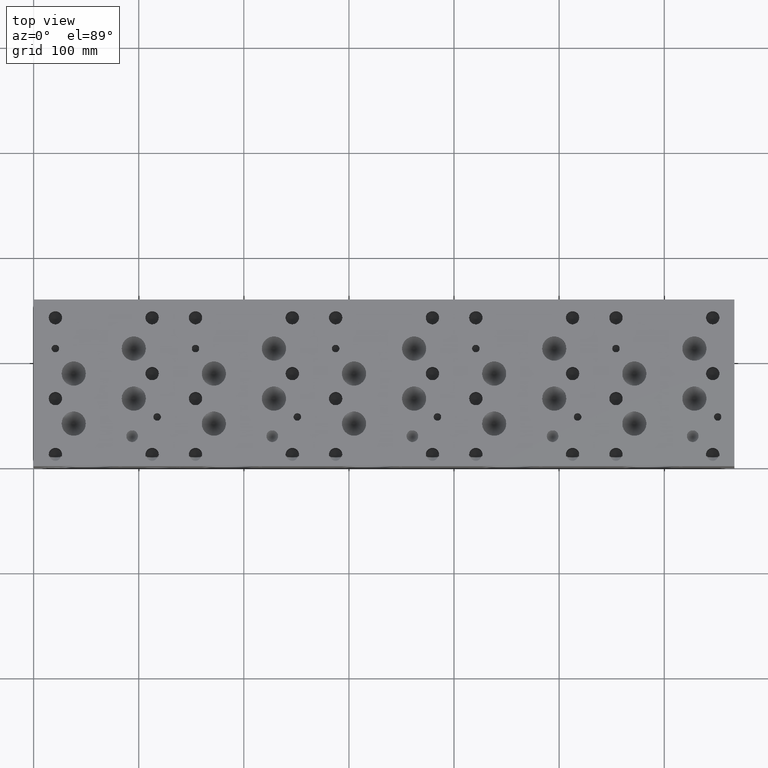
[diagram: clean part render]
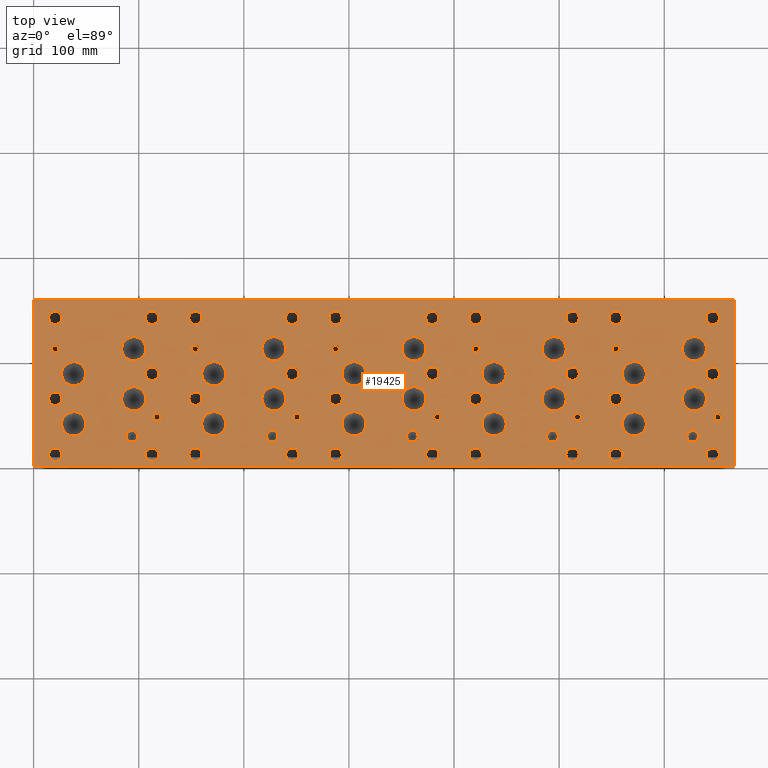
[diagram: same view with one face highlighted and labeled with its STEP entity id]
A machine part, top view. The second image highlights one B-rep face of the part: STEP entity #19425.
In plain terms, the highlighted planar face has unit normal (0, 0, 1).
Its self-contained STEP definition (entity closure, byte-faithful):
#628=CIRCLE('',#19914,5.5626);
#629=CIRCLE('',#19915,5.5626);
#632=CIRCLE('',#19920,5.5626);
#633=CIRCLE('',#19921,5.5626);
#636=CIRCLE('',#19926,5.5626);
#637=CIRCLE('',#19927,5.5626);
#640=CIRCLE('',#19932,5.5626);
#641=CIRCLE('',#19933,5.5626);
#939=CIRCLE('',#20444,5.55625);
#940=CIRCLE('',#20445,5.55625);
#943=CIRCLE('',#20450,11.50874);
#944=CIRCLE('',#20451,11.50874);
#947=CIRCLE('',#20456,11.5062);
#948=CIRCLE('',#20457,11.5062);
#951=CIRCLE('',#20462,11.5062);
#952=CIRCLE('',#20463,11.5062);
#955=CIRCLE('',#20468,11.5062);
#956=CIRCLE('',#20469,11.5062);
#959=CIRCLE('',#20474,11.5062);
#960=CIRCLE('',#20475,11.5062);
#963=CIRCLE('',#20480,11.5062);
#964=CIRCLE('',#20481,11.5062);
#967=CIRCLE('',#20486,11.5062);
#968=CIRCLE('',#20487,11.5062);
#971=CIRCLE('',#20492,11.5062);
#972=CIRCLE('',#20493,11.5062);
#975=CIRCLE('',#20498,11.5062);
#976=CIRCLE('',#20499,11.5062);
#979=CIRCLE('',#20504,11.5062);
#980=CIRCLE('',#20505,11.5062);
#983=CIRCLE('',#20510,11.5062);
#984=CIRCLE('',#20511,11.5062);
#987=CIRCLE('',#20516,11.5062);
#988=CIRCLE('',#20517,11.5062);
#991=CIRCLE('',#20522,11.5062);
#992=CIRCLE('',#20523,11.5062);
#995=CIRCLE('',#20528,11.5062);
#996=CIRCLE('',#20529,11.5062);
#999=CIRCLE('',#20534,11.5062);
#1000=CIRCLE('',#20535,11.5062);
#1003=CIRCLE('',#20540,11.5062);
#1004=CIRCLE('',#20541,11.5062);
#1007=CIRCLE('',#20546,11.5062);
#1008=CIRCLE('',#20547,11.5062);
#1011=CIRCLE('',#20552,11.5062);
#1012=CIRCLE('',#20553,11.5062);
#1015=CIRCLE('',#20558,11.5062);
#1016=CIRCLE('',#20559,11.5062);
#1019=CIRCLE('',#20564,11.5062);
#1020=CIRCLE('',#20565,11.5062);
#1023=CIRCLE('',#20570,3.5687);
#1024=CIRCLE('',#20571,3.5687);
#1027=CIRCLE('',#20576,3.5687);
#1028=CIRCLE('',#20577,3.5687);
#1031=CIRCLE('',#20582,3.5687);
#1032=CIRCLE('',#20583,3.5687);
#1035=CIRCLE('',#20588,3.5687);
#1036=CIRCLE('',#20589,3.5687);
#1039=CIRCLE('',#20594,3.5687);
#1040=CIRCLE('',#20595,3.5687);
#1043=CIRCLE('',#20600,3.5687);
#1044=CIRCLE('',#20601,3.5687);
#1047=CIRCLE('',#20606,3.5687);
#1048=CIRCLE('',#20607,3.5687);
#1051=CIRCLE('',#20612,3.5687);
#1052=CIRCLE('',#20613,3.5687);
#1055=CIRCLE('',#20618,3.5687);
#1056=CIRCLE('',#20619,3.5687);
#1059=CIRCLE('',#20624,3.5687);
#1060=CIRCLE('',#20625,3.5687);
#1066=CIRCLE('',#20634,6.35);
#1067=CIRCLE('',#20635,6.35);
#1073=CIRCLE('',#20645,6.35);
#1074=CIRCLE('',#20646,6.35);
#1080=CIRCLE('',#20656,6.35);
#1081=CIRCLE('',#20657,6.35);
#1087=CIRCLE('',#20667,6.35);
#1088=CIRCLE('',#20668,6.35);
#1094=CIRCLE('',#20678,6.35);
#1095=CIRCLE('',#20679,6.35);
#1101=CIRCLE('',#20689,6.35);
#1102=CIRCLE('',#20690,6.35);
#1108=CIRCLE('',#20700,6.35);
#1109=CIRCLE('',#20701,6.35);
#1115=CIRCLE('',#20711,6.35);
#1116=CIRCLE('',#20712,6.35);
#1122=CIRCLE('',#20722,6.35);
#1123=CIRCLE('',#20723,6.35);
#1129=CIRCLE('',#20733,6.35);
#1130=CIRCLE('',#20734,6.35);
#1136=CIRCLE('',#20744,6.35);
#1137=CIRCLE('',#20745,6.35);
#1143=CIRCLE('',#20755,6.35);
#1144=CIRCLE('',#20756,6.35);
#1150=CIRCLE('',#20766,6.35);
#1151=CIRCLE('',#20767,6.35);
#1157=CIRCLE('',#20777,6.35);
#1158=CIRCLE('',#20778,6.35);
#1164=CIRCLE('',#20788,6.35);
#1165=CIRCLE('',#20789,6.35);
#1171=CIRCLE('',#20799,6.35);
#1172=CIRCLE('',#20800,6.35);
#1178=CIRCLE('',#20810,6.35);
#1179=CIRCLE('',#20811,6.35);
#1185=CIRCLE('',#20821,6.35);
#1186=CIRCLE('',#20822,6.35);
#1192=CIRCLE('',#20832,6.35);
#1193=CIRCLE('',#20833,6.35);
#1199=CIRCLE('',#20843,6.35);
#1200=CIRCLE('',#20844,6.35);
#1206=CIRCLE('',#20854,6.35);
#1207=CIRCLE('',#20855,6.35);
#1213=CIRCLE('',#20865,6.35);
#1214=CIRCLE('',#20866,6.35);
#1220=CIRCLE('',#20876,6.35);
#1221=CIRCLE('',#20877,6.35);
#1227=CIRCLE('',#20887,6.35);
#1228=CIRCLE('',#20888,6.35);
#1234=CIRCLE('',#20898,6.35);
#1235=CIRCLE('',#20899,6.35);
#1241=CIRCLE('',#20909,6.35);
#1242=CIRCLE('',#20910,6.35);
#1248=CIRCLE('',#20920,6.35);
#1249=CIRCLE('',#20921,6.35);
#1255=CIRCLE('',#20931,6.35);
#1256=CIRCLE('',#20932,6.35);
#1262=CIRCLE('',#20942,6.35);
#1263=CIRCLE('',#20943,6.35);
#1269=CIRCLE('',#20953,6.35);
#1270=CIRCLE('',#20954,6.35);
#1837=FACE_BOUND('',#4105,.T.);
#1838=FACE_BOUND('',#4106,.T.);
#1839=FACE_BOUND('',#4107,.T.);
#1840=FACE_BOUND('',#4108,.T.);
#1841=FACE_BOUND('',#4109,.T.);
#1842=FACE_BOUND('',#4110,.T.);
#1843=FACE_BOUND('',#4111,.T.);
#1844=FACE_BOUND('',#4112,.T.);
#1845=FACE_BOUND('',#4113,.T.);
#1846=FACE_BOUND('',#4114,.T.);
#1847=FACE_BOUND('',#4115,.T.);
#1848=FACE_BOUND('',#4116,.T.);
#1849=FACE_BOUND('',#4117,.T.);
#1850=FACE_BOUND('',#4118,.T.);
#1851=FACE_BOUND('',#4119,.T.);
#1852=FACE_BOUND('',#4120,.T.);
#1853=FACE_BOUND('',#4121,.T.);
#1854=FACE_BOUND('',#4122,.T.);
#1855=FACE_BOUND('',#4123,.T.);
#1856=FACE_BOUND('',#4124,.T.);
#1857=FACE_BOUND('',#4125,.T.);
#1858=FACE_BOUND('',#4126,.T.);
#1859=FACE_BOUND('',#4127,.T.);
#1860=FACE_BOUND('',#4128,.T.);
#1861=FACE_BOUND('',#4129,.T.);
#1862=FACE_BOUND('',#4130,.T.);
#1863=FACE_BOUND('',#4131,.T.);
#1864=FACE_BOUND('',#4132,.T.);
#1865=FACE_BOUND('',#4133,.T.);
#1866=FACE_BOUND('',#4134,.T.);
#1867=FACE_BOUND('',#4135,.T.);
#1868=FACE_BOUND('',#4136,.T.);
#1869=FACE_BOUND('',#4137,.T.);
#1870=FACE_BOUND('',#4138,.T.);
#1871=FACE_BOUND('',#4139,.T.);
#1872=FACE_BOUND('',#4140,.T.);
#1873=FACE_BOUND('',#4141,.T.);
#1874=FACE_BOUND('',#4142,.T.);
#1875=FACE_BOUND('',#4143,.T.);
#1876=FACE_BOUND('',#4144,.T.);
#1877=FACE_BOUND('',#4145,.T.);
#1878=FACE_BOUND('',#4146,.T.);
#1879=FACE_BOUND('',#4147,.T.);
#1880=FACE_BOUND('',#4148,.T.);
#1881=FACE_BOUND('',#4149,.T.);
#1882=FACE_BOUND('',#4150,.T.);
#1883=FACE_BOUND('',#4151,.T.);
#1884=FACE_BOUND('',#4152,.T.);
#1885=FACE_BOUND('',#4153,.T.);
#1886=FACE_BOUND('',#4154,.T.);
#1887=FACE_BOUND('',#4155,.T.);
#1888=FACE_BOUND('',#4156,.T.);
#1889=FACE_BOUND('',#4157,.T.);
#1890=FACE_BOUND('',#4158,.T.);
#1891=FACE_BOUND('',#4159,.T.);
#1892=FACE_BOUND('',#4160,.T.);
#1893=FACE_BOUND('',#4161,.T.);
#1894=FACE_BOUND('',#4162,.T.);
#1895=FACE_BOUND('',#4163,.T.);
#1896=FACE_BOUND('',#4164,.T.);
#1897=FACE_BOUND('',#4165,.T.);
#1898=FACE_BOUND('',#4166,.T.);
#1899=FACE_BOUND('',#4167,.T.);
#1900=FACE_BOUND('',#4168,.T.);
#1901=FACE_BOUND('',#4169,.T.);
#2928=FACE_OUTER_BOUND('',#4104,.T.);
#4104=EDGE_LOOP('',(#17204,#17205,#17206,#17207));
#4105=EDGE_LOOP('',(#17208,#17209));
#4106=EDGE_LOOP('',(#17210,#17211));
#4107=EDGE_LOOP('',(#17212,#17213));
#4108=EDGE_LOOP('',(#17214,#17215));
#4109=EDGE_LOOP('',(#17216,#17217));
#4110=EDGE_LOOP('',(#17218,#17219));
#4111=EDGE_LOOP('',(#17220,#17221));
#4112=EDGE_LOOP('',(#17222,#17223));
#4113=EDGE_LOOP('',(#17224,#17225));
#4114=EDGE_LOOP('',(#17226,#17227));
#4115=EDGE_LOOP('',(#17228,#17229));
#4116=EDGE_LOOP('',(#17230,#17231));
#4117=EDGE_LOOP('',(#17232,#17233));
#4118=EDGE_LOOP('',(#17234,#17235));
#4119=EDGE_LOOP('',(#17236,#17237));
#4120=EDGE_LOOP('',(#17238,#17239));
#4121=EDGE_LOOP('',(#17240,#17241));
#4122=EDGE_LOOP('',(#17242,#17243));
#4123=EDGE_LOOP('',(#17244,#17245));
#4124=EDGE_LOOP('',(#17246,#17247));
#4125=EDGE_LOOP('',(#17248,#17249));
#4126=EDGE_LOOP('',(#17250,#17251));
#4127=EDGE_LOOP('',(#17252,#17253));
#4128=EDGE_LOOP('',(#17254,#17255));
#4129=EDGE_LOOP('',(#17256,#17257));
#4130=EDGE_LOOP('',(#17258,#17259));
#4131=EDGE_LOOP('',(#17260,#17261));
#4132=EDGE_LOOP('',(#17262,#17263));
#4133=EDGE_LOOP('',(#17264,#17265));
#4134=EDGE_LOOP('',(#17266,#17267));
#4135=EDGE_LOOP('',(#17268,#17269));
#4136=EDGE_LOOP('',(#17270,#17271));
#4137=EDGE_LOOP('',(#17272,#17273));
#4138=EDGE_LOOP('',(#17274,#17275));
#4139=EDGE_LOOP('',(#17276,#17277));
#4140=EDGE_LOOP('',(#17278,#17279));
#4141=EDGE_LOOP('',(#17280,#17281));
#4142=EDGE_LOOP('',(#17282,#17283));
#4143=EDGE_LOOP('',(#17284,#17285));
#4144=EDGE_LOOP('',(#17286,#17287));
#4145=EDGE_LOOP('',(#17288,#17289));
#4146=EDGE_LOOP('',(#17290,#17291));
#4147=EDGE_LOOP('',(#17292,#17293));
#4148=EDGE_LOOP('',(#17294,#17295));
#4149=EDGE_LOOP('',(#17296,#17297));
#4150=EDGE_LOOP('',(#17298,#17299));
#4151=EDGE_LOOP('',(#17300,#17301));
#4152=EDGE_LOOP('',(#17302,#17303));
#4153=EDGE_LOOP('',(#17304,#17305));
#4154=EDGE_LOOP('',(#17306,#17307));
#4155=EDGE_LOOP('',(#17308,#17309));
#4156=EDGE_LOOP('',(#17310,#17311));
#4157=EDGE_LOOP('',(#17312,#17313));
#4158=EDGE_LOOP('',(#17314,#17315));
#4159=EDGE_LOOP('',(#17316,#17317));
#4160=EDGE_LOOP('',(#17318,#17319));
#4161=EDGE_LOOP('',(#17320,#17321));
#4162=EDGE_LOOP('',(#17322,#17323));
#4163=EDGE_LOOP('',(#17324,#17325));
#4164=EDGE_LOOP('',(#17326,#17327));
#4165=EDGE_LOOP('',(#17328,#17329));
#4166=EDGE_LOOP('',(#17330,#17331));
#4167=EDGE_LOOP('',(#17332,#17333));
#4168=EDGE_LOOP('',(#17334,#17335));
#4169=EDGE_LOOP('',(#17336,#17337));
#4206=LINE('',#25665,#5790);
#5323=LINE('',#31418,#6907);
#5381=LINE('',#31689,#6965);
#5754=LINE('',#33926,#7338);
#5790=VECTOR('',#21025,10.);
#6907=VECTOR('',#22910,10.);
#6965=VECTOR('',#23022,10.);
#7338=VECTOR('',#25581,10.);
#7363=VERTEX_POINT('',#25662);
#7364=VERTEX_POINT('',#25664);
#8400=VERTEX_POINT('',#31416);
#8458=VERTEX_POINT('',#31688);
#8504=VERTEX_POINT('',#31819);
#8505=VERTEX_POINT('',#31820);
#8509=VERTEX_POINT('',#31832);
#8510=VERTEX_POINT('',#31833);
#8514=VERTEX_POINT('',#31845);
#8515=VERTEX_POINT('',#31846);
#8519=VERTEX_POINT('',#31858);
#8520=VERTEX_POINT('',#31859);
#8838=VERTEX_POINT('',#32868);
#8839=VERTEX_POINT('',#32869);
#8843=VERTEX_POINT('',#32881);
#8844=VERTEX_POINT('',#32882);
#8848=VERTEX_POINT('',#32894);
#8849=VERTEX_POINT('',#32895);
#8853=VERTEX_POINT('',#32907);
#8854=VERTEX_POINT('',#32908);
#8858=VERTEX_POINT('',#32920);
#8859=VERTEX_POINT('',#32921);
#8863=VERTEX_POINT('',#32933);
#8864=VERTEX_POINT('',#32934);
#8868=VERTEX_POINT('',#32946);
#8869=VERTEX_POINT('',#32947);
#8873=VERTEX_POINT('',#32959);
#8874=VERTEX_POINT('',#32960);
#8878=VERTEX_POINT('',#32972);
#8879=VERTEX_POINT('',#32973);
#8883=VERTEX_POINT('',#32985);
#8884=VERTEX_POINT('',#32986);
#8888=VERTEX_POINT('',#32998);
#8889=VERTEX_POINT('',#32999);
#8893=VERTEX_POINT('',#33011);
#8894=VERTEX_POINT('',#33012);
#8898=VERTEX_POINT('',#33024);
#8899=VERTEX_POINT('',#33025);
#8903=VERTEX_POINT('',#33037);
#8904=VERTEX_POINT('',#33038);
#8908=VERTEX_POINT('',#33050);
#8909=VERTEX_POINT('',#33051);
#8913=VERTEX_POINT('',#33063);
#8914=VERTEX_POINT('',#33064);
#8918=VERTEX_POINT('',#33076);
#8919=VERTEX_POINT('',#33077);
#8923=VERTEX_POINT('',#33089);
#8924=VERTEX_POINT('',#33090);
#8928=VERTEX_POINT('',#33102);
#8929=VERTEX_POINT('',#33103);
#8933=VERTEX_POINT('',#33115);
#8934=VERTEX_POINT('',#33116);
#8938=VERTEX_POINT('',#33128);
#8939=VERTEX_POINT('',#33129);
#8943=VERTEX_POINT('',#33141);
#8944=VERTEX_POINT('',#33142);
#8948=VERTEX_POINT('',#33154);
#8949=VERTEX_POINT('',#33155);
#8953=VERTEX_POINT('',#33167);
#8954=VERTEX_POINT('',#33168);
#8958=VERTEX_POINT('',#33180);
#8959=VERTEX_POINT('',#33181);
#8963=VERTEX_POINT('',#33193);
#8964=VERTEX_POINT('',#33194);
#8968=VERTEX_POINT('',#33206);
#8969=VERTEX_POINT('',#33207);
#8973=VERTEX_POINT('',#33219);
#8974=VERTEX_POINT('',#33220);
#8978=VERTEX_POINT('',#33232);
#8979=VERTEX_POINT('',#33233);
#8983=VERTEX_POINT('',#33245);
#8984=VERTEX_POINT('',#33246);
#8988=VERTEX_POINT('',#33258);
#8989=VERTEX_POINT('',#33259);
#8996=VERTEX_POINT('',#33278);
#8997=VERTEX_POINT('',#33279);
#9004=VERTEX_POINT('',#33300);
#9005=VERTEX_POINT('',#33301);
#9012=VERTEX_POINT('',#33322);
#9013=VERTEX_POINT('',#33323);
#9020=VERTEX_POINT('',#33344);
#9021=VERTEX_POINT('',#33345);
#9028=VERTEX_POINT('',#33366);
#9029=VERTEX_POINT('',#33367);
#9036=VERTEX_POINT('',#33388);
#9037=VERTEX_POINT('',#33389);
#9044=VERTEX_POINT('',#33410);
#9045=VERTEX_POINT('',#33411);
#9052=VERTEX_POINT('',#33432);
#9053=VERTEX_POINT('',#33433);
#9060=VERTEX_POINT('',#33454);
#9061=VERTEX_POINT('',#33455);
#9068=VERTEX_POINT('',#33476);
#9069=VERTEX_POINT('',#33477);
#9076=VERTEX_POINT('',#33498);
#9077=VERTEX_POINT('',#33499);
#9084=VERTEX_POINT('',#33520);
#9085=VERTEX_POINT('',#33521);
#9092=VERTEX_POINT('',#33542);
#9093=VERTEX_POINT('',#33543);
#9100=VERTEX_POINT('',#33564);
#9101=VERTEX_POINT('',#33565);
#9108=VERTEX_POINT('',#33586);
#9109=VERTEX_POINT('',#33587);
#9116=VERTEX_POINT('',#33608);
#9117=VERTEX_POINT('',#33609);
#9124=VERTEX_POINT('',#33630);
#9125=VERTEX_POINT('',#33631);
#9132=VERTEX_POINT('',#33652);
#9133=VERTEX_POINT('',#33653);
#9140=VERTEX_POINT('',#33674);
#9141=VERTEX_POINT('',#33675);
#9148=VERTEX_POINT('',#33696);
#9149=VERTEX_POINT('',#33697);
#9156=VERTEX_POINT('',#33718);
#9157=VERTEX_POINT('',#33719);
#9164=VERTEX_POINT('',#33740);
#9165=VERTEX_POINT('',#33741);
#9172=VERTEX_POINT('',#33762);
#9173=VERTEX_POINT('',#33763);
#9180=VERTEX_POINT('',#33784);
#9181=VERTEX_POINT('',#33785);
#9188=VERTEX_POINT('',#33806);
#9189=VERTEX_POINT('',#33807);
#9196=VERTEX_POINT('',#33828);
#9197=VERTEX_POINT('',#33829);
#9204=VERTEX_POINT('',#33850);
#9205=VERTEX_POINT('',#33851);
#9212=VERTEX_POINT('',#33872);
#9213=VERTEX_POINT('',#33873);
#9220=VERTEX_POINT('',#33894);
#9221=VERTEX_POINT('',#33895);
#9228=VERTEX_POINT('',#33916);
#9229=VERTEX_POINT('',#33917);
#9265=EDGE_CURVE('',#7364,#7363,#4206,.T.);
#10808=EDGE_CURVE('',#7363,#8400,#5323,.T.);
#10890=EDGE_CURVE('',#8458,#7364,#5381,.T.);
#10953=EDGE_CURVE('',#8504,#8505,#628,.T.);
#10954=EDGE_CURVE('',#8505,#8504,#629,.T.);
#10959=EDGE_CURVE('',#8509,#8510,#632,.T.);
#10960=EDGE_CURVE('',#8510,#8509,#633,.T.);
#10965=EDGE_CURVE('',#8514,#8515,#636,.T.);
#10966=EDGE_CURVE('',#8515,#8514,#637,.T.);
#10971=EDGE_CURVE('',#8519,#8520,#640,.T.);
#10972=EDGE_CURVE('',#8520,#8519,#641,.T.);
#11449=EDGE_CURVE('',#8838,#8839,#939,.T.);
#11450=EDGE_CURVE('',#8839,#8838,#940,.T.);
#11455=EDGE_CURVE('',#8843,#8844,#943,.T.);
#11456=EDGE_CURVE('',#8844,#8843,#944,.T.);
#11461=EDGE_CURVE('',#8848,#8849,#947,.T.);
#11462=EDGE_CURVE('',#8849,#8848,#948,.T.);
#11467=EDGE_CURVE('',#8853,#8854,#951,.T.);
#11468=EDGE_CURVE('',#8854,#8853,#952,.T.);
#11473=EDGE_CURVE('',#8858,#8859,#955,.T.);
#11474=EDGE_CURVE('',#8859,#8858,#956,.T.);
#11479=EDGE_CURVE('',#8863,#8864,#959,.T.);
#11480=EDGE_CURVE('',#8864,#8863,#960,.T.);
#11485=EDGE_CURVE('',#8868,#8869,#963,.T.);
#11486=EDGE_CURVE('',#8869,#8868,#964,.T.);
#11491=EDGE_CURVE('',#8873,#8874,#967,.T.);
#11492=EDGE_CURVE('',#8874,#8873,#968,.T.);
#11497=EDGE_CURVE('',#8878,#8879,#971,.T.);
#11498=EDGE_CURVE('',#8879,#8878,#972,.T.);
#11503=EDGE_CURVE('',#8883,#8884,#975,.T.);
#11504=EDGE_CURVE('',#8884,#8883,#976,.T.);
#11509=EDGE_CURVE('',#8888,#8889,#979,.T.);
#11510=EDGE_CURVE('',#8889,#8888,#980,.T.);
#11515=EDGE_CURVE('',#8893,#8894,#983,.T.);
#11516=EDGE_CURVE('',#8894,#8893,#984,.T.);
#11521=EDGE_CURVE('',#8898,#8899,#987,.T.);
#11522=EDGE_CURVE('',#8899,#8898,#988,.T.);
#11527=EDGE_CURVE('',#8903,#8904,#991,.T.);
#11528=EDGE_CURVE('',#8904,#8903,#992,.T.);
#11533=EDGE_CURVE('',#8908,#8909,#995,.T.);
#11534=EDGE_CURVE('',#8909,#8908,#996,.T.);
#11539=EDGE_CURVE('',#8913,#8914,#999,.T.);
#11540=EDGE_CURVE('',#8914,#8913,#1000,.T.);
#11545=EDGE_CURVE('',#8918,#8919,#1003,.T.);
#11546=EDGE_CURVE('',#8919,#8918,#1004,.T.);
#11551=EDGE_CURVE('',#8923,#8924,#1007,.T.);
#11552=EDGE_CURVE('',#8924,#8923,#1008,.T.);
#11557=EDGE_CURVE('',#8928,#8929,#1011,.T.);
#11558=EDGE_CURVE('',#8929,#8928,#1012,.T.);
#11563=EDGE_CURVE('',#8933,#8934,#1015,.T.);
#11564=EDGE_CURVE('',#8934,#8933,#1016,.T.);
#11569=EDGE_CURVE('',#8938,#8939,#1019,.T.);
#11570=EDGE_CURVE('',#8939,#8938,#1020,.T.);
#11575=EDGE_CURVE('',#8943,#8944,#1023,.T.);
#11576=EDGE_CURVE('',#8944,#8943,#1024,.T.);
#11581=EDGE_CURVE('',#8948,#8949,#1027,.T.);
#11582=EDGE_CURVE('',#8949,#8948,#1028,.T.);
#11587=EDGE_CURVE('',#8953,#8954,#1031,.T.);
#11588=EDGE_CURVE('',#8954,#8953,#1032,.T.);
#11593=EDGE_CURVE('',#8958,#8959,#1035,.T.);
#11594=EDGE_CURVE('',#8959,#8958,#1036,.T.);
#11599=EDGE_CURVE('',#8963,#8964,#1039,.T.);
#11600=EDGE_CURVE('',#8964,#8963,#1040,.T.);
#11605=EDGE_CURVE('',#8968,#8969,#1043,.T.);
#11606=EDGE_CURVE('',#8969,#8968,#1044,.T.);
#11611=EDGE_CURVE('',#8973,#8974,#1047,.T.);
#11612=EDGE_CURVE('',#8974,#8973,#1048,.T.);
#11617=EDGE_CURVE('',#8978,#8979,#1051,.T.);
#11618=EDGE_CURVE('',#8979,#8978,#1052,.T.);
#11623=EDGE_CURVE('',#8983,#8984,#1055,.T.);
#11624=EDGE_CURVE('',#8984,#8983,#1056,.T.);
#11629=EDGE_CURVE('',#8988,#8989,#1059,.T.);
#11630=EDGE_CURVE('',#8989,#8988,#1060,.T.);
#11638=EDGE_CURVE('',#8996,#8997,#1066,.T.);
#11639=EDGE_CURVE('',#8997,#8996,#1067,.T.);
#11648=EDGE_CURVE('',#9004,#9005,#1073,.T.);
#11649=EDGE_CURVE('',#9005,#9004,#1074,.T.);
#11658=EDGE_CURVE('',#9012,#9013,#1080,.T.);
#11659=EDGE_CURVE('',#9013,#9012,#1081,.T.);
#11668=EDGE_CURVE('',#9020,#9021,#1087,.T.);
#11669=EDGE_CURVE('',#9021,#9020,#1088,.T.);
#11678=EDGE_CURVE('',#9028,#9029,#1094,.T.);
#11679=EDGE_CURVE('',#9029,#9028,#1095,.T.);
#11688=EDGE_CURVE('',#9036,#9037,#1101,.T.);
#11689=EDGE_CURVE('',#9037,#9036,#1102,.T.);
#11698=EDGE_CURVE('',#9044,#9045,#1108,.T.);
#11699=EDGE_CURVE('',#9045,#9044,#1109,.T.);
#11708=EDGE_CURVE('',#9052,#9053,#1115,.T.);
#11709=EDGE_CURVE('',#9053,#9052,#1116,.T.);
#11718=EDGE_CURVE('',#9060,#9061,#1122,.T.);
#11719=EDGE_CURVE('',#9061,#9060,#1123,.T.);
#11728=EDGE_CURVE('',#9068,#9069,#1129,.T.);
#11729=EDGE_CURVE('',#9069,#9068,#1130,.T.);
#11738=EDGE_CURVE('',#9076,#9077,#1136,.T.);
#11739=EDGE_CURVE('',#9077,#9076,#1137,.T.);
#11748=EDGE_CURVE('',#9084,#9085,#1143,.T.);
#11749=EDGE_CURVE('',#9085,#9084,#1144,.T.);
#11758=EDGE_CURVE('',#9092,#9093,#1150,.T.);
#11759=EDGE_CURVE('',#9093,#9092,#1151,.T.);
#11768=EDGE_CURVE('',#9100,#9101,#1157,.T.);
#11769=EDGE_CURVE('',#9101,#9100,#1158,.T.);
#11778=EDGE_CURVE('',#9108,#9109,#1164,.T.);
#11779=EDGE_CURVE('',#9109,#9108,#1165,.T.);
#11788=EDGE_CURVE('',#9116,#9117,#1171,.T.);
#11789=EDGE_CURVE('',#9117,#9116,#1172,.T.);
#11798=EDGE_CURVE('',#9124,#9125,#1178,.T.);
#11799=EDGE_CURVE('',#9125,#9124,#1179,.T.);
#11808=EDGE_CURVE('',#9132,#9133,#1185,.T.);
#11809=EDGE_CURVE('',#9133,#9132,#1186,.T.);
#11818=EDGE_CURVE('',#9140,#9141,#1192,.T.);
#11819=EDGE_CURVE('',#9141,#9140,#1193,.T.);
#11828=EDGE_CURVE('',#9148,#9149,#1199,.T.);
#11829=EDGE_CURVE('',#9149,#9148,#1200,.T.);
#11838=EDGE_CURVE('',#9156,#9157,#1206,.T.);
#11839=EDGE_CURVE('',#9157,#9156,#1207,.T.);
#11848=EDGE_CURVE('',#9164,#9165,#1213,.T.);
#11849=EDGE_CURVE('',#9165,#9164,#1214,.T.);
#11858=EDGE_CURVE('',#9172,#9173,#1220,.T.);
#11859=EDGE_CURVE('',#9173,#9172,#1221,.T.);
#11868=EDGE_CURVE('',#9180,#9181,#1227,.T.);
#11869=EDGE_CURVE('',#9181,#9180,#1228,.T.);
#11878=EDGE_CURVE('',#9188,#9189,#1234,.T.);
#11879=EDGE_CURVE('',#9189,#9188,#1235,.T.);
#11888=EDGE_CURVE('',#9196,#9197,#1241,.T.);
#11889=EDGE_CURVE('',#9197,#9196,#1242,.T.);
#11898=EDGE_CURVE('',#9204,#9205,#1248,.T.);
#11899=EDGE_CURVE('',#9205,#9204,#1249,.T.);
#11908=EDGE_CURVE('',#9212,#9213,#1255,.T.);
#11909=EDGE_CURVE('',#9213,#9212,#1256,.T.);
#11918=EDGE_CURVE('',#9220,#9221,#1262,.T.);
#11919=EDGE_CURVE('',#9221,#9220,#1263,.T.);
#11928=EDGE_CURVE('',#9228,#9229,#1269,.T.);
#11929=EDGE_CURVE('',#9229,#9228,#1270,.T.);
#11933=EDGE_CURVE('',#8400,#8458,#5754,.T.);
#17204=ORIENTED_EDGE('',*,*,#9265,.T.);
#17205=ORIENTED_EDGE('',*,*,#10808,.T.);
#17206=ORIENTED_EDGE('',*,*,#11933,.T.);
#17207=ORIENTED_EDGE('',*,*,#10890,.T.);
#17208=ORIENTED_EDGE('',*,*,#10953,.T.);
#17209=ORIENTED_EDGE('',*,*,#10954,.T.);
#17210=ORIENTED_EDGE('',*,*,#10959,.T.);
#17211=ORIENTED_EDGE('',*,*,#10960,.T.);
#17212=ORIENTED_EDGE('',*,*,#10965,.T.);
#17213=ORIENTED_EDGE('',*,*,#10966,.T.);
#17214=ORIENTED_EDGE('',*,*,#10971,.T.);
#17215=ORIENTED_EDGE('',*,*,#10972,.T.);
#17216=ORIENTED_EDGE('',*,*,#11449,.T.);
#17217=ORIENTED_EDGE('',*,*,#11450,.T.);
#17218=ORIENTED_EDGE('',*,*,#11455,.T.);
#17219=ORIENTED_EDGE('',*,*,#11456,.T.);
#17220=ORIENTED_EDGE('',*,*,#11461,.T.);
#17221=ORIENTED_EDGE('',*,*,#11462,.T.);
#17222=ORIENTED_EDGE('',*,*,#11467,.T.);
#17223=ORIENTED_EDGE('',*,*,#11468,.T.);
#17224=ORIENTED_EDGE('',*,*,#11473,.T.);
#17225=ORIENTED_EDGE('',*,*,#11474,.T.);
#17226=ORIENTED_EDGE('',*,*,#11479,.T.);
#17227=ORIENTED_EDGE('',*,*,#11480,.T.);
#17228=ORIENTED_EDGE('',*,*,#11485,.T.);
#17229=ORIENTED_EDGE('',*,*,#11486,.T.);
#17230=ORIENTED_EDGE('',*,*,#11491,.T.);
#17231=ORIENTED_EDGE('',*,*,#11492,.T.);
#17232=ORIENTED_EDGE('',*,*,#11497,.T.);
#17233=ORIENTED_EDGE('',*,*,#11498,.T.);
#17234=ORIENTED_EDGE('',*,*,#11503,.T.);
#17235=ORIENTED_EDGE('',*,*,#11504,.T.);
#17236=ORIENTED_EDGE('',*,*,#11509,.T.);
#17237=ORIENTED_EDGE('',*,*,#11510,.T.);
#17238=ORIENTED_EDGE('',*,*,#11515,.T.);
#17239=ORIENTED_EDGE('',*,*,#11516,.T.);
#17240=ORIENTED_EDGE('',*,*,#11521,.T.);
#17241=ORIENTED_EDGE('',*,*,#11522,.T.);
#17242=ORIENTED_EDGE('',*,*,#11527,.T.);
#17243=ORIENTED_EDGE('',*,*,#11528,.T.);
#17244=ORIENTED_EDGE('',*,*,#11533,.T.);
#17245=ORIENTED_EDGE('',*,*,#11534,.T.);
#17246=ORIENTED_EDGE('',*,*,#11539,.T.);
#17247=ORIENTED_EDGE('',*,*,#11540,.T.);
#17248=ORIENTED_EDGE('',*,*,#11545,.T.);
#17249=ORIENTED_EDGE('',*,*,#11546,.T.);
#17250=ORIENTED_EDGE('',*,*,#11551,.T.);
#17251=ORIENTED_EDGE('',*,*,#11552,.T.);
#17252=ORIENTED_EDGE('',*,*,#11557,.T.);
#17253=ORIENTED_EDGE('',*,*,#11558,.T.);
#17254=ORIENTED_EDGE('',*,*,#11563,.T.);
#17255=ORIENTED_EDGE('',*,*,#11564,.T.);
#17256=ORIENTED_EDGE('',*,*,#11569,.T.);
#17257=ORIENTED_EDGE('',*,*,#11570,.T.);
#17258=ORIENTED_EDGE('',*,*,#11575,.T.);
#17259=ORIENTED_EDGE('',*,*,#11576,.T.);
#17260=ORIENTED_EDGE('',*,*,#11581,.T.);
#17261=ORIENTED_EDGE('',*,*,#11582,.T.);
#17262=ORIENTED_EDGE('',*,*,#11587,.T.);
#17263=ORIENTED_EDGE('',*,*,#11588,.T.);
#17264=ORIENTED_EDGE('',*,*,#11593,.T.);
#17265=ORIENTED_EDGE('',*,*,#11594,.T.);
#17266=ORIENTED_EDGE('',*,*,#11599,.T.);
#17267=ORIENTED_EDGE('',*,*,#11600,.T.);
#17268=ORIENTED_EDGE('',*,*,#11605,.T.);
#17269=ORIENTED_EDGE('',*,*,#11606,.T.);
#17270=ORIENTED_EDGE('',*,*,#11611,.T.);
#17271=ORIENTED_EDGE('',*,*,#11612,.T.);
#17272=ORIENTED_EDGE('',*,*,#11617,.T.);
#17273=ORIENTED_EDGE('',*,*,#11618,.T.);
#17274=ORIENTED_EDGE('',*,*,#11623,.T.);
#17275=ORIENTED_EDGE('',*,*,#11624,.T.);
#17276=ORIENTED_EDGE('',*,*,#11629,.T.);
#17277=ORIENTED_EDGE('',*,*,#11630,.T.);
#17278=ORIENTED_EDGE('',*,*,#11638,.T.);
#17279=ORIENTED_EDGE('',*,*,#11639,.T.);
#17280=ORIENTED_EDGE('',*,*,#11648,.T.);
#17281=ORIENTED_EDGE('',*,*,#11649,.T.);
#17282=ORIENTED_EDGE('',*,*,#11658,.T.);
#17283=ORIENTED_EDGE('',*,*,#11659,.T.);
#17284=ORIENTED_EDGE('',*,*,#11668,.T.);
#17285=ORIENTED_EDGE('',*,*,#11669,.T.);
#17286=ORIENTED_EDGE('',*,*,#11678,.T.);
#17287=ORIENTED_EDGE('',*,*,#11679,.T.);
#17288=ORIENTED_EDGE('',*,*,#11688,.T.);
#17289=ORIENTED_EDGE('',*,*,#11689,.T.);
#17290=ORIENTED_EDGE('',*,*,#11698,.T.);
#17291=ORIENTED_EDGE('',*,*,#11699,.T.);
#17292=ORIENTED_EDGE('',*,*,#11708,.T.);
#17293=ORIENTED_EDGE('',*,*,#11709,.T.);
#17294=ORIENTED_EDGE('',*,*,#11718,.T.);
#17295=ORIENTED_EDGE('',*,*,#11719,.T.);
#17296=ORIENTED_EDGE('',*,*,#11728,.T.);
#17297=ORIENTED_EDGE('',*,*,#11729,.T.);
#17298=ORIENTED_EDGE('',*,*,#11738,.T.);
#17299=ORIENTED_EDGE('',*,*,#11739,.T.);
#17300=ORIENTED_EDGE('',*,*,#11748,.T.);
#17301=ORIENTED_EDGE('',*,*,#11749,.T.);
#17302=ORIENTED_EDGE('',*,*,#11758,.T.);
#17303=ORIENTED_EDGE('',*,*,#11759,.T.);
#17304=ORIENTED_EDGE('',*,*,#11768,.T.);
#17305=ORIENTED_EDGE('',*,*,#11769,.T.);
#17306=ORIENTED_EDGE('',*,*,#11778,.T.);
#17307=ORIENTED_EDGE('',*,*,#11779,.T.);
#17308=ORIENTED_EDGE('',*,*,#11788,.T.);
#17309=ORIENTED_EDGE('',*,*,#11789,.T.);
#17310=ORIENTED_EDGE('',*,*,#11798,.T.);
#17311=ORIENTED_EDGE('',*,*,#11799,.T.);
#17312=ORIENTED_EDGE('',*,*,#11808,.T.);
#17313=ORIENTED_EDGE('',*,*,#11809,.T.);
#17314=ORIENTED_EDGE('',*,*,#11818,.T.);
#17315=ORIENTED_EDGE('',*,*,#11819,.T.);
#17316=ORIENTED_EDGE('',*,*,#11828,.T.);
#17317=ORIENTED_EDGE('',*,*,#11829,.T.);
#17318=ORIENTED_EDGE('',*,*,#11838,.T.);
#17319=ORIENTED_EDGE('',*,*,#11839,.T.);
#17320=ORIENTED_EDGE('',*,*,#11848,.T.);
#17321=ORIENTED_EDGE('',*,*,#11849,.T.);
#17322=ORIENTED_EDGE('',*,*,#11858,.T.);
#17323=ORIENTED_EDGE('',*,*,#11859,.T.);
#17324=ORIENTED_EDGE('',*,*,#11868,.T.);
#17325=ORIENTED_EDGE('',*,*,#11869,.T.);
#17326=ORIENTED_EDGE('',*,*,#11878,.T.);
#17327=ORIENTED_EDGE('',*,*,#11879,.T.);
#17328=ORIENTED_EDGE('',*,*,#11888,.T.);
#17329=ORIENTED_EDGE('',*,*,#11889,.T.);
#17330=ORIENTED_EDGE('',*,*,#11898,.T.);
#17331=ORIENTED_EDGE('',*,*,#11899,.T.);
#17332=ORIENTED_EDGE('',*,*,#11908,.T.);
#17333=ORIENTED_EDGE('',*,*,#11909,.T.);
#17334=ORIENTED_EDGE('',*,*,#11918,.T.);
#17335=ORIENTED_EDGE('',*,*,#11919,.T.);
#17336=ORIENTED_EDGE('',*,*,#11928,.T.);
#17337=ORIENTED_EDGE('',*,*,#11929,.T.);
#17813=PLANE('',#20960);
#19425=ADVANCED_FACE('',(#2928,#1837,#1838,#1839,#1840,#1841,#1842,#1843,
#1844,#1845,#1846,#1847,#1848,#1849,#1850,#1851,#1852,#1853,#1854,#1855,
#1856,#1857,#1858,#1859,#1860,#1861,#1862,#1863,#1864,#1865,#1866,#1867,
#1868,#1869,#1870,#1871,#1872,#1873,#1874,#1875,#1876,#1877,#1878,#1879,
#1880,#1881,#1882,#1883,#1884,#1885,#1886,#1887,#1888,#1889,#1890,#1891,
#1892,#1893,#1894,#1895,#1896,#1897,#1898,#1899,#1900,#1901),#17813,.T.);
#19914=AXIS2_PLACEMENT_3D('',#31821,#23156,#23157);
#19915=AXIS2_PLACEMENT_3D('',#31822,#23158,#23159);
#19920=AXIS2_PLACEMENT_3D('',#31834,#23170,#23171);
#19921=AXIS2_PLACEMENT_3D('',#31835,#23172,#23173);
#19926=AXIS2_PLACEMENT_3D('',#31847,#23184,#23185);
#19927=AXIS2_PLACEMENT_3D('',#31848,#23186,#23187);
#19932=AXIS2_PLACEMENT_3D('',#31860,#23198,#23199);
#19933=AXIS2_PLACEMENT_3D('',#31861,#23200,#23201);
#20444=AXIS2_PLACEMENT_3D('',#32870,#24401,#24402);
#20445=AXIS2_PLACEMENT_3D('',#32871,#24403,#24404);
#20450=AXIS2_PLACEMENT_3D('',#32883,#24415,#24416);
#20451=AXIS2_PLACEMENT_3D('',#32884,#24417,#24418);
#20456=AXIS2_PLACEMENT_3D('',#32896,#24429,#24430);
#20457=AXIS2_PLACEMENT_3D('',#32897,#24431,#24432);
#20462=AXIS2_PLACEMENT_3D('',#32909,#24443,#24444);
#20463=AXIS2_PLACEMENT_3D('',#32910,#24445,#24446);
#20468=AXIS2_PLACEMENT_3D('',#32922,#24457,#24458);
#20469=AXIS2_PLACEMENT_3D('',#32923,#24459,#24460);
#20474=AXIS2_PLACEMENT_3D('',#32935,#24471,#24472);
#20475=AXIS2_PLACEMENT_3D('',#32936,#24473,#24474);
#20480=AXIS2_PLACEMENT_3D('',#32948,#24485,#24486);
#20481=AXIS2_PLACEMENT_3D('',#32949,#24487,#24488);
#20486=AXIS2_PLACEMENT_3D('',#32961,#24499,#24500);
#20487=AXIS2_PLACEMENT_3D('',#32962,#24501,#24502);
#20492=AXIS2_PLACEMENT_3D('',#32974,#24513,#24514);
#20493=AXIS2_PLACEMENT_3D('',#32975,#24515,#24516);
#20498=AXIS2_PLACEMENT_3D('',#32987,#24527,#24528);
#20499=AXIS2_PLACEMENT_3D('',#32988,#24529,#24530);
#20504=AXIS2_PLACEMENT_3D('',#33000,#24541,#24542);
#20505=AXIS2_PLACEMENT_3D('',#33001,#24543,#24544);
#20510=AXIS2_PLACEMENT_3D('',#33013,#24555,#24556);
#20511=AXIS2_PLACEMENT_3D('',#33014,#24557,#24558);
#20516=AXIS2_PLACEMENT_3D('',#33026,#24569,#24570);
#20517=AXIS2_PLACEMENT_3D('',#33027,#24571,#24572);
#20522=AXIS2_PLACEMENT_3D('',#33039,#24583,#24584);
#20523=AXIS2_PLACEMENT_3D('',#33040,#24585,#24586);
#20528=AXIS2_PLACEMENT_3D('',#33052,#24597,#24598);
#20529=AXIS2_PLACEMENT_3D('',#33053,#24599,#24600);
#20534=AXIS2_PLACEMENT_3D('',#33065,#24611,#24612);
#20535=AXIS2_PLACEMENT_3D('',#33066,#24613,#24614);
#20540=AXIS2_PLACEMENT_3D('',#33078,#24625,#24626);
#20541=AXIS2_PLACEMENT_3D('',#33079,#24627,#24628);
#20546=AXIS2_PLACEMENT_3D('',#33091,#24639,#24640);
#20547=AXIS2_PLACEMENT_3D('',#33092,#24641,#24642);
#20552=AXIS2_PLACEMENT_3D('',#33104,#24653,#24654);
#20553=AXIS2_PLACEMENT_3D('',#33105,#24655,#24656);
#20558=AXIS2_PLACEMENT_3D('',#33117,#24667,#24668);
#20559=AXIS2_PLACEMENT_3D('',#33118,#24669,#24670);
#20564=AXIS2_PLACEMENT_3D('',#33130,#24681,#24682);
#20565=AXIS2_PLACEMENT_3D('',#33131,#24683,#24684);
#20570=AXIS2_PLACEMENT_3D('',#33143,#24695,#24696);
#20571=AXIS2_PLACEMENT_3D('',#33144,#24697,#24698);
#20576=AXIS2_PLACEMENT_3D('',#33156,#24709,#24710);
#20577=AXIS2_PLACEMENT_3D('',#33157,#24711,#24712);
#20582=AXIS2_PLACEMENT_3D('',#33169,#24723,#24724);
#20583=AXIS2_PLACEMENT_3D('',#33170,#24725,#24726);
#20588=AXIS2_PLACEMENT_3D('',#33182,#24737,#24738);
#20589=AXIS2_PLACEMENT_3D('',#33183,#24739,#24740);
#20594=AXIS2_PLACEMENT_3D('',#33195,#24751,#24752);
#20595=AXIS2_PLACEMENT_3D('',#33196,#24753,#24754);
#20600=AXIS2_PLACEMENT_3D('',#33208,#24765,#24766);
#20601=AXIS2_PLACEMENT_3D('',#33209,#24767,#24768);
#20606=AXIS2_PLACEMENT_3D('',#33221,#24779,#24780);
#20607=AXIS2_PLACEMENT_3D('',#33222,#24781,#24782);
#20612=AXIS2_PLACEMENT_3D('',#33234,#24793,#24794);
#20613=AXIS2_PLACEMENT_3D('',#33235,#24795,#24796);
#20618=AXIS2_PLACEMENT_3D('',#33247,#24807,#24808);
#20619=AXIS2_PLACEMENT_3D('',#33248,#24809,#24810);
#20624=AXIS2_PLACEMENT_3D('',#33260,#24821,#24822);
#20625=AXIS2_PLACEMENT_3D('',#33261,#24823,#24824);
#20634=AXIS2_PLACEMENT_3D('',#33280,#24843,#24844);
#20635=AXIS2_PLACEMENT_3D('',#33281,#24845,#24846);
#20645=AXIS2_PLACEMENT_3D('',#33302,#24868,#24869);
#20646=AXIS2_PLACEMENT_3D('',#33303,#24870,#24871);
#20656=AXIS2_PLACEMENT_3D('',#33324,#24893,#24894);
#20657=AXIS2_PLACEMENT_3D('',#33325,#24895,#24896);
#20667=AXIS2_PLACEMENT_3D('',#33346,#24918,#24919);
#20668=AXIS2_PLACEMENT_3D('',#33347,#24920,#24921);
#20678=AXIS2_PLACEMENT_3D('',#33368,#24943,#24944);
#20679=AXIS2_PLACEMENT_3D('',#33369,#24945,#24946);
#20689=AXIS2_PLACEMENT_3D('',#33390,#24968,#24969);
#20690=AXIS2_PLACEMENT_3D('',#33391,#24970,#24971);
#20700=AXIS2_PLACEMENT_3D('',#33412,#24993,#24994);
#20701=AXIS2_PLACEMENT_3D('',#33413,#24995,#24996);
#20711=AXIS2_PLACEMENT_3D('',#33434,#25018,#25019);
#20712=AXIS2_PLACEMENT_3D('',#33435,#25020,#25021);
#20722=AXIS2_PLACEMENT_3D('',#33456,#25043,#25044);
#20723=AXIS2_PLACEMENT_3D('',#33457,#25045,#25046);
#20733=AXIS2_PLACEMENT_3D('',#33478,#25068,#25069);
#20734=AXIS2_PLACEMENT_3D('',#33479,#25070,#25071);
#20744=AXIS2_PLACEMENT_3D('',#33500,#25093,#25094);
#20745=AXIS2_PLACEMENT_3D('',#33501,#25095,#25096);
#20755=AXIS2_PLACEMENT_3D('',#33522,#25118,#25119);
#20756=AXIS2_PLACEMENT_3D('',#33523,#25120,#25121);
#20766=AXIS2_PLACEMENT_3D('',#33544,#25143,#25144);
#20767=AXIS2_PLACEMENT_3D('',#33545,#25145,#25146);
#20777=AXIS2_PLACEMENT_3D('',#33566,#25168,#25169);
#20778=AXIS2_PLACEMENT_3D('',#33567,#25170,#25171);
#20788=AXIS2_PLACEMENT_3D('',#33588,#25193,#25194);
#20789=AXIS2_PLACEMENT_3D('',#33589,#25195,#25196);
#20799=AXIS2_PLACEMENT_3D('',#33610,#25218,#25219);
#20800=AXIS2_PLACEMENT_3D('',#33611,#25220,#25221);
#20810=AXIS2_PLACEMENT_3D('',#33632,#25243,#25244);
#20811=AXIS2_PLACEMENT_3D('',#33633,#25245,#25246);
#20821=AXIS2_PLACEMENT_3D('',#33654,#25268,#25269);
#20822=AXIS2_PLACEMENT_3D('',#33655,#25270,#25271);
#20832=AXIS2_PLACEMENT_3D('',#33676,#25293,#25294);
#20833=AXIS2_PLACEMENT_3D('',#33677,#25295,#25296);
#20843=AXIS2_PLACEMENT_3D('',#33698,#25318,#25319);
#20844=AXIS2_PLACEMENT_3D('',#33699,#25320,#25321);
#20854=AXIS2_PLACEMENT_3D('',#33720,#25343,#25344);
#20855=AXIS2_PLACEMENT_3D('',#33721,#25345,#25346);
#20865=AXIS2_PLACEMENT_3D('',#33742,#25368,#25369);
#20866=AXIS2_PLACEMENT_3D('',#33743,#25370,#25371);
#20876=AXIS2_PLACEMENT_3D('',#33764,#25393,#25394);
#20877=AXIS2_PLACEMENT_3D('',#33765,#25395,#25396);
#20887=AXIS2_PLACEMENT_3D('',#33786,#25418,#25419);
#20888=AXIS2_PLACEMENT_3D('',#33787,#25420,#25421);
#20898=AXIS2_PLACEMENT_3D('',#33808,#25443,#25444);
#20899=AXIS2_PLACEMENT_3D('',#33809,#25445,#25446);
#20909=AXIS2_PLACEMENT_3D('',#33830,#25468,#25469);
#20910=AXIS2_PLACEMENT_3D('',#33831,#25470,#25471);
#20920=AXIS2_PLACEMENT_3D('',#33852,#25493,#25494);
#20921=AXIS2_PLACEMENT_3D('',#33853,#25495,#25496);
#20931=AXIS2_PLACEMENT_3D('',#33874,#25518,#25519);
#20932=AXIS2_PLACEMENT_3D('',#33875,#25520,#25521);
#20942=AXIS2_PLACEMENT_3D('',#33896,#25543,#25544);
#20943=AXIS2_PLACEMENT_3D('',#33897,#25545,#25546);
#20953=AXIS2_PLACEMENT_3D('',#33918,#25568,#25569);
#20954=AXIS2_PLACEMENT_3D('',#33919,#25570,#25571);
#20960=AXIS2_PLACEMENT_3D('',#33929,#25586,#25587);
#21025=DIRECTION('',(1.,0.,0.));
#22910=DIRECTION('',(0.,1.,0.));
#23022=DIRECTION('',(0.,-1.,0.));
#23156=DIRECTION('center_axis',(0.,0.,-1.));
#23157=DIRECTION('ref_axis',(1.,0.,0.));
#23158=DIRECTION('center_axis',(0.,0.,-1.));
#23159=DIRECTION('ref_axis',(1.,0.,0.));
#23170=DIRECTION('center_axis',(0.,0.,-1.));
#23171=DIRECTION('ref_axis',(1.,0.,0.));
#23172=DIRECTION('center_axis',(0.,0.,-1.));
#23173=DIRECTION('ref_axis',(1.,0.,0.));
#23184=DIRECTION('center_axis',(0.,0.,-1.));
#23185=DIRECTION('ref_axis',(1.,0.,0.));
#23186=DIRECTION('center_axis',(0.,0.,-1.));
#23187=DIRECTION('ref_axis',(1.,0.,0.));
#23198=DIRECTION('center_axis',(0.,0.,-1.));
#23199=DIRECTION('ref_axis',(1.,0.,0.));
#23200=DIRECTION('center_axis',(0.,0.,-1.));
#23201=DIRECTION('ref_axis',(1.,0.,0.));
#24401=DIRECTION('center_axis',(0.,0.,-1.));
#24402=DIRECTION('ref_axis',(1.,0.,0.));
#24403=DIRECTION('center_axis',(0.,0.,-1.));
#24404=DIRECTION('ref_axis',(1.,0.,0.));
#24415=DIRECTION('center_axis',(0.,0.,-1.));
#24416=DIRECTION('ref_axis',(1.,0.,0.));
#24417=DIRECTION('center_axis',(0.,0.,-1.));
#24418=DIRECTION('ref_axis',(1.,0.,0.));
#24429=DIRECTION('center_axis',(0.,0.,-1.));
#24430=DIRECTION('ref_axis',(1.,0.,0.));
#24431=DIRECTION('center_axis',(0.,0.,-1.));
#24432=DIRECTION('ref_axis',(1.,0.,0.));
#24443=DIRECTION('center_axis',(0.,0.,-1.));
#24444=DIRECTION('ref_axis',(1.,0.,0.));
#24445=DIRECTION('center_axis',(0.,0.,-1.));
#24446=DIRECTION('ref_axis',(1.,0.,0.));
#24457=DIRECTION('center_axis',(0.,0.,-1.));
#24458=DIRECTION('ref_axis',(1.,0.,0.));
#24459=DIRECTION('center_axis',(0.,0.,-1.));
#24460=DIRECTION('ref_axis',(1.,0.,0.));
#24471=DIRECTION('center_axis',(0.,0.,-1.));
#24472=DIRECTION('ref_axis',(1.,0.,0.));
#24473=DIRECTION('center_axis',(0.,0.,-1.));
#24474=DIRECTION('ref_axis',(1.,0.,0.));
#24485=DIRECTION('center_axis',(0.,0.,-1.));
#24486=DIRECTION('ref_axis',(1.,0.,0.));
#24487=DIRECTION('center_axis',(0.,0.,-1.));
#24488=DIRECTION('ref_axis',(1.,0.,0.));
#24499=DIRECTION('center_axis',(0.,0.,-1.));
#24500=DIRECTION('ref_axis',(1.,0.,0.));
#24501=DIRECTION('center_axis',(0.,0.,-1.));
#24502=DIRECTION('ref_axis',(1.,0.,0.));
#24513=DIRECTION('center_axis',(0.,0.,-1.));
#24514=DIRECTION('ref_axis',(1.,0.,0.));
#24515=DIRECTION('center_axis',(0.,0.,-1.));
#24516=DIRECTION('ref_axis',(1.,0.,0.));
#24527=DIRECTION('center_axis',(0.,0.,-1.));
#24528=DIRECTION('ref_axis',(1.,0.,0.));
#24529=DIRECTION('center_axis',(0.,0.,-1.));
#24530=DIRECTION('ref_axis',(1.,0.,0.));
#24541=DIRECTION('center_axis',(0.,0.,-1.));
#24542=DIRECTION('ref_axis',(1.,0.,0.));
#24543=DIRECTION('center_axis',(0.,0.,-1.));
#24544=DIRECTION('ref_axis',(1.,0.,0.));
#24555=DIRECTION('center_axis',(0.,0.,-1.));
#24556=DIRECTION('ref_axis',(1.,0.,0.));
#24557=DIRECTION('center_axis',(0.,0.,-1.));
#24558=DIRECTION('ref_axis',(1.,0.,0.));
#24569=DIRECTION('center_axis',(0.,0.,-1.));
#24570=DIRECTION('ref_axis',(1.,0.,0.));
#24571=DIRECTION('center_axis',(0.,0.,-1.));
#24572=DIRECTION('ref_axis',(1.,0.,0.));
#24583=DIRECTION('center_axis',(0.,0.,-1.));
#24584=DIRECTION('ref_axis',(1.,0.,0.));
#24585=DIRECTION('center_axis',(0.,0.,-1.));
#24586=DIRECTION('ref_axis',(1.,0.,0.));
#24597=DIRECTION('center_axis',(0.,0.,-1.));
#24598=DIRECTION('ref_axis',(1.,0.,0.));
#24599=DIRECTION('center_axis',(0.,0.,-1.));
#24600=DIRECTION('ref_axis',(1.,0.,0.));
#24611=DIRECTION('center_axis',(0.,0.,-1.));
#24612=DIRECTION('ref_axis',(1.,0.,0.));
#24613=DIRECTION('center_axis',(0.,0.,-1.));
#24614=DIRECTION('ref_axis',(1.,0.,0.));
#24625=DIRECTION('center_axis',(0.,0.,-1.));
#24626=DIRECTION('ref_axis',(1.,0.,0.));
#24627=DIRECTION('center_axis',(0.,0.,-1.));
#24628=DIRECTION('ref_axis',(1.,0.,0.));
#24639=DIRECTION('center_axis',(0.,0.,-1.));
#24640=DIRECTION('ref_axis',(1.,0.,0.));
#24641=DIRECTION('center_axis',(0.,0.,-1.));
#24642=DIRECTION('ref_axis',(1.,0.,0.));
#24653=DIRECTION('center_axis',(0.,0.,-1.));
#24654=DIRECTION('ref_axis',(1.,0.,0.));
#24655=DIRECTION('center_axis',(0.,0.,-1.));
#24656=DIRECTION('ref_axis',(1.,0.,0.));
#24667=DIRECTION('center_axis',(0.,0.,-1.));
#24668=DIRECTION('ref_axis',(1.,0.,0.));
#24669=DIRECTION('center_axis',(0.,0.,-1.));
#24670=DIRECTION('ref_axis',(1.,0.,0.));
#24681=DIRECTION('center_axis',(0.,0.,-1.));
#24682=DIRECTION('ref_axis',(1.,0.,0.));
#24683=DIRECTION('center_axis',(0.,0.,-1.));
#24684=DIRECTION('ref_axis',(1.,0.,0.));
#24695=DIRECTION('center_axis',(0.,0.,-1.));
#24696=DIRECTION('ref_axis',(1.,0.,0.));
#24697=DIRECTION('center_axis',(0.,0.,-1.));
#24698=DIRECTION('ref_axis',(1.,0.,0.));
#24709=DIRECTION('center_axis',(0.,0.,-1.));
#24710=DIRECTION('ref_axis',(1.,0.,0.));
#24711=DIRECTION('center_axis',(0.,0.,-1.));
#24712=DIRECTION('ref_axis',(1.,0.,0.));
#24723=DIRECTION('center_axis',(0.,0.,-1.));
#24724=DIRECTION('ref_axis',(1.,0.,0.));
#24725=DIRECTION('center_axis',(0.,0.,-1.));
#24726=DIRECTION('ref_axis',(1.,0.,0.));
#24737=DIRECTION('center_axis',(0.,0.,-1.));
#24738=DIRECTION('ref_axis',(1.,0.,0.));
#24739=DIRECTION('center_axis',(0.,0.,-1.));
#24740=DIRECTION('ref_axis',(1.,0.,0.));
#24751=DIRECTION('center_axis',(0.,0.,-1.));
#24752=DIRECTION('ref_axis',(1.,0.,0.));
#24753=DIRECTION('center_axis',(0.,0.,-1.));
#24754=DIRECTION('ref_axis',(1.,0.,0.));
#24765=DIRECTION('center_axis',(0.,0.,-1.));
#24766=DIRECTION('ref_axis',(1.,0.,0.));
#24767=DIRECTION('center_axis',(0.,0.,-1.));
#24768=DIRECTION('ref_axis',(1.,0.,0.));
#24779=DIRECTION('center_axis',(0.,0.,-1.));
#24780=DIRECTION('ref_axis',(1.,0.,0.));
#24781=DIRECTION('center_axis',(0.,0.,-1.));
#24782=DIRECTION('ref_axis',(1.,0.,0.));
#24793=DIRECTION('center_axis',(0.,0.,-1.));
#24794=DIRECTION('ref_axis',(1.,0.,0.));
#24795=DIRECTION('center_axis',(0.,0.,-1.));
#24796=DIRECTION('ref_axis',(1.,0.,0.));
#24807=DIRECTION('center_axis',(0.,0.,-1.));
#24808=DIRECTION('ref_axis',(1.,0.,0.));
#24809=DIRECTION('center_axis',(0.,0.,-1.));
#24810=DIRECTION('ref_axis',(1.,0.,0.));
#24821=DIRECTION('center_axis',(0.,0.,-1.));
#24822=DIRECTION('ref_axis',(1.,0.,0.));
#24823=DIRECTION('center_axis',(0.,0.,-1.));
#24824=DIRECTION('ref_axis',(1.,0.,0.));
#24843=DIRECTION('center_axis',(0.,0.,-1.));
#24844=DIRECTION('ref_axis',(1.,0.,0.));
#24845=DIRECTION('center_axis',(0.,0.,-1.));
#24846=DIRECTION('ref_axis',(1.,0.,0.));
#24868=DIRECTION('center_axis',(0.,0.,-1.));
#24869=DIRECTION('ref_axis',(1.,0.,0.));
#24870=DIRECTION('center_axis',(0.,0.,-1.));
#24871=DIRECTION('ref_axis',(1.,0.,0.));
#24893=DIRECTION('center_axis',(0.,0.,-1.));
#24894=DIRECTION('ref_axis',(1.,0.,0.));
#24895=DIRECTION('center_axis',(0.,0.,-1.));
#24896=DIRECTION('ref_axis',(1.,0.,0.));
#24918=DIRECTION('center_axis',(0.,0.,-1.));
#24919=DIRECTION('ref_axis',(1.,0.,0.));
#24920=DIRECTION('center_axis',(0.,0.,-1.));
#24921=DIRECTION('ref_axis',(1.,0.,0.));
#24943=DIRECTION('center_axis',(0.,0.,-1.));
#24944=DIRECTION('ref_axis',(1.,0.,0.));
#24945=DIRECTION('center_axis',(0.,0.,-1.));
#24946=DIRECTION('ref_axis',(1.,0.,0.));
#24968=DIRECTION('center_axis',(0.,0.,-1.));
#24969=DIRECTION('ref_axis',(1.,0.,0.));
#24970=DIRECTION('center_axis',(0.,0.,-1.));
#24971=DIRECTION('ref_axis',(1.,0.,0.));
#24993=DIRECTION('center_axis',(0.,0.,-1.));
#24994=DIRECTION('ref_axis',(1.,0.,0.));
#24995=DIRECTION('center_axis',(0.,0.,-1.));
#24996=DIRECTION('ref_axis',(1.,0.,0.));
#25018=DIRECTION('center_axis',(0.,0.,-1.));
#25019=DIRECTION('ref_axis',(1.,0.,0.));
#25020=DIRECTION('center_axis',(0.,0.,-1.));
#25021=DIRECTION('ref_axis',(1.,0.,0.));
#25043=DIRECTION('center_axis',(0.,0.,-1.));
#25044=DIRECTION('ref_axis',(1.,0.,0.));
#25045=DIRECTION('center_axis',(0.,0.,-1.));
#25046=DIRECTION('ref_axis',(1.,0.,0.));
#25068=DIRECTION('center_axis',(0.,0.,-1.));
#25069=DIRECTION('ref_axis',(1.,0.,0.));
#25070=DIRECTION('center_axis',(0.,0.,-1.));
#25071=DIRECTION('ref_axis',(1.,0.,0.));
#25093=DIRECTION('center_axis',(0.,0.,-1.));
#25094=DIRECTION('ref_axis',(1.,0.,0.));
#25095=DIRECTION('center_axis',(0.,0.,-1.));
#25096=DIRECTION('ref_axis',(1.,0.,0.));
#25118=DIRECTION('center_axis',(0.,0.,-1.));
#25119=DIRECTION('ref_axis',(1.,0.,0.));
#25120=DIRECTION('center_axis',(0.,0.,-1.));
#25121=DIRECTION('ref_axis',(1.,0.,0.));
#25143=DIRECTION('center_axis',(0.,0.,-1.));
#25144=DIRECTION('ref_axis',(1.,0.,0.));
#25145=DIRECTION('center_axis',(0.,0.,-1.));
#25146=DIRECTION('ref_axis',(1.,0.,0.));
#25168=DIRECTION('center_axis',(0.,0.,-1.));
#25169=DIRECTION('ref_axis',(1.,0.,0.));
#25170=DIRECTION('center_axis',(0.,0.,-1.));
#25171=DIRECTION('ref_axis',(1.,0.,0.));
#25193=DIRECTION('center_axis',(0.,0.,-1.));
#25194=DIRECTION('ref_axis',(1.,0.,0.));
#25195=DIRECTION('center_axis',(0.,0.,-1.));
#25196=DIRECTION('ref_axis',(1.,0.,0.));
#25218=DIRECTION('center_axis',(0.,0.,-1.));
#25219=DIRECTION('ref_axis',(1.,0.,0.));
#25220=DIRECTION('center_axis',(0.,0.,-1.));
#25221=DIRECTION('ref_axis',(1.,0.,0.));
#25243=DIRECTION('center_axis',(0.,0.,-1.));
#25244=DIRECTION('ref_axis',(1.,0.,0.));
#25245=DIRECTION('center_axis',(0.,0.,-1.));
#25246=DIRECTION('ref_axis',(1.,0.,0.));
#25268=DIRECTION('center_axis',(0.,0.,-1.));
#25269=DIRECTION('ref_axis',(1.,0.,0.));
#25270=DIRECTION('center_axis',(0.,0.,-1.));
#25271=DIRECTION('ref_axis',(1.,0.,0.));
#25293=DIRECTION('center_axis',(0.,0.,-1.));
#25294=DIRECTION('ref_axis',(1.,0.,0.));
#25295=DIRECTION('center_axis',(0.,0.,-1.));
#25296=DIRECTION('ref_axis',(1.,0.,0.));
#25318=DIRECTION('center_axis',(0.,0.,-1.));
#25319=DIRECTION('ref_axis',(1.,0.,0.));
#25320=DIRECTION('center_axis',(0.,0.,-1.));
#25321=DIRECTION('ref_axis',(1.,0.,0.));
#25343=DIRECTION('center_axis',(0.,0.,-1.));
#25344=DIRECTION('ref_axis',(1.,0.,0.));
#25345=DIRECTION('center_axis',(0.,0.,-1.));
#25346=DIRECTION('ref_axis',(1.,0.,0.));
#25368=DIRECTION('center_axis',(0.,0.,-1.));
#25369=DIRECTION('ref_axis',(1.,0.,0.));
#25370=DIRECTION('center_axis',(0.,0.,-1.));
#25371=DIRECTION('ref_axis',(1.,0.,0.));
#25393=DIRECTION('center_axis',(0.,0.,-1.));
#25394=DIRECTION('ref_axis',(1.,0.,0.));
#25395=DIRECTION('center_axis',(0.,0.,-1.));
#25396=DIRECTION('ref_axis',(1.,0.,0.));
#25418=DIRECTION('center_axis',(0.,0.,-1.));
#25419=DIRECTION('ref_axis',(1.,0.,0.));
#25420=DIRECTION('center_axis',(0.,0.,-1.));
#25421=DIRECTION('ref_axis',(1.,0.,0.));
#25443=DIRECTION('center_axis',(0.,0.,-1.));
#25444=DIRECTION('ref_axis',(1.,0.,0.));
#25445=DIRECTION('center_axis',(0.,0.,-1.));
#25446=DIRECTION('ref_axis',(1.,0.,0.));
#25468=DIRECTION('center_axis',(0.,0.,-1.));
#25469=DIRECTION('ref_axis',(1.,0.,0.));
#25470=DIRECTION('center_axis',(0.,0.,-1.));
#25471=DIRECTION('ref_axis',(1.,0.,0.));
#25493=DIRECTION('center_axis',(0.,0.,-1.));
#25494=DIRECTION('ref_axis',(1.,0.,0.));
#25495=DIRECTION('center_axis',(0.,0.,-1.));
#25496=DIRECTION('ref_axis',(1.,0.,0.));
#25518=DIRECTION('center_axis',(0.,0.,-1.));
#25519=DIRECTION('ref_axis',(1.,0.,0.));
#25520=DIRECTION('center_axis',(0.,0.,-1.));
#25521=DIRECTION('ref_axis',(1.,0.,0.));
#25543=DIRECTION('center_axis',(0.,0.,-1.));
#25544=DIRECTION('ref_axis',(1.,0.,0.));
#25545=DIRECTION('center_axis',(0.,0.,-1.));
#25546=DIRECTION('ref_axis',(1.,0.,0.));
#25568=DIRECTION('center_axis',(0.,0.,-1.));
#25569=DIRECTION('ref_axis',(1.,0.,0.));
#25570=DIRECTION('center_axis',(0.,0.,-1.));
#25571=DIRECTION('ref_axis',(1.,0.,0.));
#25581=DIRECTION('',(-1.,0.,0.));
#25586=DIRECTION('center_axis',(0.,0.,1.));
#25587=DIRECTION('ref_axis',(1.,0.,0.));
#25662=CARTESIAN_POINT('',(666.75,0.,120.65));
#25664=CARTESIAN_POINT('',(0.,0.,120.65));
#25665=CARTESIAN_POINT('',(0.,0.,120.65));
#31416=CARTESIAN_POINT('',(666.75,158.75,120.65));
#31418=CARTESIAN_POINT('',(666.75,0.,120.65));
#31688=CARTESIAN_POINT('',(0.,158.75,120.65));
#31689=CARTESIAN_POINT('',(0.,158.75,120.65));
#31819=CARTESIAN_POINT('',(499.2624,28.575,120.65));
#31820=CARTESIAN_POINT('',(488.1372,28.575,120.65));
#31821=CARTESIAN_POINT('Origin',(493.6998,28.575,120.65));
#31822=CARTESIAN_POINT('Origin',(493.6998,28.575,120.65));
#31832=CARTESIAN_POINT('',(232.5624,28.575,120.65));
#31833=CARTESIAN_POINT('',(221.4372,28.575,120.65));
#31834=CARTESIAN_POINT('Origin',(226.9998,28.575,120.65));
#31835=CARTESIAN_POINT('Origin',(226.9998,28.575,120.65));
#31845=CARTESIAN_POINT('',(365.9124,28.575,120.65));
#31846=CARTESIAN_POINT('',(354.7872,28.575,120.65));
#31847=CARTESIAN_POINT('Origin',(360.3498,28.575,120.65));
#31848=CARTESIAN_POINT('Origin',(360.3498,28.575,120.65));
#31858=CARTESIAN_POINT('',(632.6124,28.575,120.65));
#31859=CARTESIAN_POINT('',(621.4872,28.575,120.65));
#31860=CARTESIAN_POINT('Origin',(627.0498,28.575,120.65));
#31861=CARTESIAN_POINT('Origin',(627.0498,28.575,120.65));
#32868=CARTESIAN_POINT('',(99.21875,28.56992,120.65));
#32869=CARTESIAN_POINT('',(88.10625,28.56992,120.65));
#32870=CARTESIAN_POINT('Origin',(93.6625,28.56992,120.65));
#32871=CARTESIAN_POINT('Origin',(93.6625,28.56992,120.65));
#32881=CARTESIAN_POINT('',(106.75874,111.9124,120.65));
#32882=CARTESIAN_POINT('',(83.74126,111.9124,120.65));
#32883=CARTESIAN_POINT('Origin',(95.25,111.9124,120.65));
#32884=CARTESIAN_POINT('Origin',(95.25,111.9124,120.65));
#32894=CARTESIAN_POINT('',(583.0062,88.1126,120.65));
#32895=CARTESIAN_POINT('',(559.9938,88.1126,120.65));
#32896=CARTESIAN_POINT('Origin',(571.5,88.1126,120.65));
#32897=CARTESIAN_POINT('Origin',(571.5,88.1126,120.65));
#32907=CARTESIAN_POINT('',(640.1562,64.2874,120.65));
#32908=CARTESIAN_POINT('',(617.1438,64.2874,120.65));
#32909=CARTESIAN_POINT('Origin',(628.65,64.2874,120.65));
#32910=CARTESIAN_POINT('Origin',(628.65,64.2874,120.65));
#32920=CARTESIAN_POINT('',(449.6562,88.1126,120.65));
#32921=CARTESIAN_POINT('',(426.6438,88.1126,120.65));
#32922=CARTESIAN_POINT('Origin',(438.15,88.1126,120.65));
#32923=CARTESIAN_POINT('Origin',(438.15,88.1126,120.65));
#32933=CARTESIAN_POINT('',(506.8062,64.2874,120.65));
#32934=CARTESIAN_POINT('',(483.7938,64.2874,120.65));
#32935=CARTESIAN_POINT('Origin',(495.3,64.2874,120.65));
#32936=CARTESIAN_POINT('Origin',(495.3,64.2874,120.65));
#32946=CARTESIAN_POINT('',(316.3062,88.1126,120.65));
#32947=CARTESIAN_POINT('',(293.2938,88.1126,120.65));
#32948=CARTESIAN_POINT('Origin',(304.8,88.1126,120.65));
#32949=CARTESIAN_POINT('Origin',(304.8,88.1126,120.65));
#32959=CARTESIAN_POINT('',(373.4562,64.2874,120.65));
#32960=CARTESIAN_POINT('',(350.4438,64.2874,120.65));
#32961=CARTESIAN_POINT('Origin',(361.95,64.2874,120.65));
#32962=CARTESIAN_POINT('Origin',(361.95,64.2874,120.65));
#32972=CARTESIAN_POINT('',(182.9562,88.1126,120.65));
#32973=CARTESIAN_POINT('',(159.9438,88.1126,120.65));
#32974=CARTESIAN_POINT('Origin',(171.45,88.1126,120.65));
#32975=CARTESIAN_POINT('Origin',(171.45,88.1126,120.65));
#32985=CARTESIAN_POINT('',(240.1062,64.2874,120.65));
#32986=CARTESIAN_POINT('',(217.0938,64.2874,120.65));
#32987=CARTESIAN_POINT('Origin',(228.6,64.2874,120.65));
#32988=CARTESIAN_POINT('Origin',(228.6,64.2874,120.65));
#32998=CARTESIAN_POINT('',(49.6062,88.1126,120.65));
#32999=CARTESIAN_POINT('',(26.5938,88.1126,120.65));
#33000=CARTESIAN_POINT('Origin',(38.1,88.1126,120.65));
#33001=CARTESIAN_POINT('Origin',(38.1,88.1126,120.65));
#33011=CARTESIAN_POINT('',(106.7562,64.2874,120.65));
#33012=CARTESIAN_POINT('',(83.7438,64.2874,120.65));
#33013=CARTESIAN_POINT('Origin',(95.25,64.2874,120.65));
#33014=CARTESIAN_POINT('Origin',(95.25,64.2874,120.65));
#33024=CARTESIAN_POINT('',(49.6062,40.4622,120.65));
#33025=CARTESIAN_POINT('',(26.5938,40.4622,120.65));
#33026=CARTESIAN_POINT('Origin',(38.1,40.4622,120.65));
#33027=CARTESIAN_POINT('Origin',(38.1,40.4622,120.65));
#33037=CARTESIAN_POINT('',(240.1062,111.9124,120.65));
#33038=CARTESIAN_POINT('',(217.0938,111.9124,120.65));
#33039=CARTESIAN_POINT('Origin',(228.6,111.9124,120.65));
#33040=CARTESIAN_POINT('Origin',(228.6,111.9124,120.65));
#33050=CARTESIAN_POINT('',(182.9562,40.4622,120.65));
#33051=CARTESIAN_POINT('',(159.9438,40.4622,120.65));
#33052=CARTESIAN_POINT('Origin',(171.45,40.4622,120.65));
#33053=CARTESIAN_POINT('Origin',(171.45,40.4622,120.65));
#33063=CARTESIAN_POINT('',(373.4562,111.9124,120.65));
#33064=CARTESIAN_POINT('',(350.4438,111.9124,120.65));
#33065=CARTESIAN_POINT('Origin',(361.95,111.9124,120.65));
#33066=CARTESIAN_POINT('Origin',(361.95,111.9124,120.65));
#33076=CARTESIAN_POINT('',(316.3062,40.4622,120.65));
#33077=CARTESIAN_POINT('',(293.2938,40.4622,120.65));
#33078=CARTESIAN_POINT('Origin',(304.8,40.4622,120.65));
#33079=CARTESIAN_POINT('Origin',(304.8,40.4622,120.65));
#33089=CARTESIAN_POINT('',(506.8062,111.9124,120.65));
#33090=CARTESIAN_POINT('',(483.7938,111.9124,120.65));
#33091=CARTESIAN_POINT('Origin',(495.3,111.9124,120.65));
#33092=CARTESIAN_POINT('Origin',(495.3,111.9124,120.65));
#33102=CARTESIAN_POINT('',(449.6562,40.4622,120.65));
#33103=CARTESIAN_POINT('',(426.6438,40.4622,120.65));
#33104=CARTESIAN_POINT('Origin',(438.15,40.4622,120.65));
#33105=CARTESIAN_POINT('Origin',(438.15,40.4622,120.65));
#33115=CARTESIAN_POINT('',(640.1562,111.9124,120.65));
#33116=CARTESIAN_POINT('',(617.1438,111.9124,120.65));
#33117=CARTESIAN_POINT('Origin',(628.65,111.9124,120.65));
#33118=CARTESIAN_POINT('Origin',(628.65,111.9124,120.65));
#33128=CARTESIAN_POINT('',(583.0062,40.4622,120.65));
#33129=CARTESIAN_POINT('',(559.9938,40.4622,120.65));
#33130=CARTESIAN_POINT('Origin',(571.5,40.4622,120.65));
#33131=CARTESIAN_POINT('Origin',(571.5,40.4622,120.65));
#33141=CARTESIAN_POINT('',(557.5935,111.9124,120.65));
#33142=CARTESIAN_POINT('',(550.4561,111.9124,120.65));
#33143=CARTESIAN_POINT('Origin',(554.0248,111.9124,120.65));
#33144=CARTESIAN_POINT('Origin',(554.0248,111.9124,120.65));
#33154=CARTESIAN_POINT('',(424.2435,111.9124,120.65));
#33155=CARTESIAN_POINT('',(417.1061,111.9124,120.65));
#33156=CARTESIAN_POINT('Origin',(420.6748,111.9124,120.65));
#33157=CARTESIAN_POINT('Origin',(420.6748,111.9124,120.65));
#33167=CARTESIAN_POINT('',(290.8935,111.9124,120.65));
#33168=CARTESIAN_POINT('',(283.7561,111.9124,120.65));
#33169=CARTESIAN_POINT('Origin',(287.3248,111.9124,120.65));
#33170=CARTESIAN_POINT('Origin',(287.3248,111.9124,120.65));
#33180=CARTESIAN_POINT('',(157.5435,111.9124,120.65));
#33181=CARTESIAN_POINT('',(150.4061,111.9124,120.65));
#33182=CARTESIAN_POINT('Origin',(153.9748,111.9124,120.65));
#33183=CARTESIAN_POINT('Origin',(153.9748,111.9124,120.65));
#33193=CARTESIAN_POINT('',(24.1935,111.9124,120.65));
#33194=CARTESIAN_POINT('',(17.0561,111.9124,120.65));
#33195=CARTESIAN_POINT('Origin',(20.6248,111.9124,120.65));
#33196=CARTESIAN_POINT('Origin',(20.6248,111.9124,120.65));
#33206=CARTESIAN_POINT('',(121.0437,46.8376,120.65));
#33207=CARTESIAN_POINT('',(113.9063,46.8376,120.65));
#33208=CARTESIAN_POINT('Origin',(117.475,46.8376,120.65));
#33209=CARTESIAN_POINT('Origin',(117.475,46.8376,120.65));
#33219=CARTESIAN_POINT('',(254.3937,46.8376,120.65));
#33220=CARTESIAN_POINT('',(247.2563,46.8376,120.65));
#33221=CARTESIAN_POINT('Origin',(250.825,46.8376,120.65));
#33222=CARTESIAN_POINT('Origin',(250.825,46.8376,120.65));
#33232=CARTESIAN_POINT('',(387.7437,46.8376,120.65));
#33233=CARTESIAN_POINT('',(380.6063,46.8376,120.65));
#33234=CARTESIAN_POINT('Origin',(384.175,46.8376,120.65));
#33235=CARTESIAN_POINT('Origin',(384.175,46.8376,120.65));
#33245=CARTESIAN_POINT('',(521.0937,46.8376,120.65));
#33246=CARTESIAN_POINT('',(513.9563,46.8376,120.65));
#33247=CARTESIAN_POINT('Origin',(517.525,46.8376,120.65));
#33248=CARTESIAN_POINT('Origin',(517.525,46.8376,120.65));
#33258=CARTESIAN_POINT('',(654.4437,46.8376,120.65));
#33259=CARTESIAN_POINT('',(647.3063,46.8376,120.65));
#33260=CARTESIAN_POINT('Origin',(650.875,46.8376,120.65));
#33261=CARTESIAN_POINT('Origin',(650.875,46.8376,120.65));
#33278=CARTESIAN_POINT('',(560.3748,11.0998,120.65));
#33279=CARTESIAN_POINT('',(547.6748,11.0998,120.65));
#33280=CARTESIAN_POINT('Origin',(554.0248,11.0998,120.65));
#33281=CARTESIAN_POINT('Origin',(554.0248,11.0998,120.65));
#33300=CARTESIAN_POINT('',(652.4752,88.0872,120.65));
#33301=CARTESIAN_POINT('',(639.7752,88.0872,120.65));
#33302=CARTESIAN_POINT('Origin',(646.1252,88.0872,120.65));
#33303=CARTESIAN_POINT('Origin',(646.1252,88.0872,120.65));
#33322=CARTESIAN_POINT('',(560.3748,141.2748,120.65));
#33323=CARTESIAN_POINT('',(547.6748,141.2748,120.65));
#33324=CARTESIAN_POINT('Origin',(554.0248,141.2748,120.65));
#33325=CARTESIAN_POINT('Origin',(554.0248,141.2748,120.65));
#33344=CARTESIAN_POINT('',(427.0248,11.0998,120.65));
#33345=CARTESIAN_POINT('',(414.3248,11.0998,120.65));
#33346=CARTESIAN_POINT('Origin',(420.6748,11.0998,120.65));
#33347=CARTESIAN_POINT('Origin',(420.6748,11.0998,120.65));
#33366=CARTESIAN_POINT('',(519.1252,88.0872,120.65));
#33367=CARTESIAN_POINT('',(506.4252,88.0872,120.65));
#33368=CARTESIAN_POINT('Origin',(512.7752,88.0872,120.65));
#33369=CARTESIAN_POINT('Origin',(512.7752,88.0872,120.65));
#33388=CARTESIAN_POINT('',(427.0248,141.2748,120.65));
#33389=CARTESIAN_POINT('',(414.3248,141.2748,120.65));
#33390=CARTESIAN_POINT('Origin',(420.6748,141.2748,120.65));
#33391=CARTESIAN_POINT('Origin',(420.6748,141.2748,120.65));
#33410=CARTESIAN_POINT('',(293.6748,11.0998,120.65));
#33411=CARTESIAN_POINT('',(280.9748,11.0998,120.65));
#33412=CARTESIAN_POINT('Origin',(287.3248,11.0998,120.65));
#33413=CARTESIAN_POINT('Origin',(287.3248,11.0998,120.65));
#33432=CARTESIAN_POINT('',(385.7752,88.0872,120.65));
#33433=CARTESIAN_POINT('',(373.0752,88.0872,120.65));
#33434=CARTESIAN_POINT('Origin',(379.4252,88.0872,120.65));
#33435=CARTESIAN_POINT('Origin',(379.4252,88.0872,120.65));
#33454=CARTESIAN_POINT('',(293.6748,141.2748,120.65));
#33455=CARTESIAN_POINT('',(280.9748,141.2748,120.65));
#33456=CARTESIAN_POINT('Origin',(287.3248,141.2748,120.65));
#33457=CARTESIAN_POINT('Origin',(287.3248,141.2748,120.65));
#33476=CARTESIAN_POINT('',(160.3248,11.0998,120.65));
#33477=CARTESIAN_POINT('',(147.6248,11.0998,120.65));
#33478=CARTESIAN_POINT('Origin',(153.9748,11.0998,120.65));
#33479=CARTESIAN_POINT('Origin',(153.9748,11.0998,120.65));
#33498=CARTESIAN_POINT('',(252.4252,88.0872,120.65));
#33499=CARTESIAN_POINT('',(239.7252,88.0872,120.65));
#33500=CARTESIAN_POINT('Origin',(246.0752,88.0872,120.65));
#33501=CARTESIAN_POINT('Origin',(246.0752,88.0872,120.65));
#33520=CARTESIAN_POINT('',(160.3248,141.2748,120.65));
#33521=CARTESIAN_POINT('',(147.6248,141.2748,120.65));
#33522=CARTESIAN_POINT('Origin',(153.9748,141.2748,120.65));
#33523=CARTESIAN_POINT('Origin',(153.9748,141.2748,120.65));
#33542=CARTESIAN_POINT('',(26.9875,11.10742,120.65));
#33543=CARTESIAN_POINT('',(14.2875,11.10742,120.65));
#33544=CARTESIAN_POINT('Origin',(20.6375,11.10742,120.65));
#33545=CARTESIAN_POINT('Origin',(20.6375,11.10742,120.65));
#33564=CARTESIAN_POINT('',(119.0752,88.0999,120.65));
#33565=CARTESIAN_POINT('',(106.3752,88.0999,120.65));
#33566=CARTESIAN_POINT('Origin',(112.7252,88.0999,120.65));
#33567=CARTESIAN_POINT('Origin',(112.7252,88.0999,120.65));
#33586=CARTESIAN_POINT('',(119.0625,141.27988,120.65));
#33587=CARTESIAN_POINT('',(106.3625,141.27988,120.65));
#33588=CARTESIAN_POINT('Origin',(112.7125,141.27988,120.65));
#33589=CARTESIAN_POINT('Origin',(112.7125,141.27988,120.65));
#33608=CARTESIAN_POINT('',(119.0625,11.10742,120.65));
#33609=CARTESIAN_POINT('',(106.3625,11.10742,120.65));
#33610=CARTESIAN_POINT('Origin',(112.7125,11.10742,120.65));
#33611=CARTESIAN_POINT('Origin',(112.7125,11.10742,120.65));
#33630=CARTESIAN_POINT('',(27.0002,64.2874,120.65));
#33631=CARTESIAN_POINT('',(14.3002,64.2874,120.65));
#33632=CARTESIAN_POINT('Origin',(20.6502,64.2874,120.65));
#33633=CARTESIAN_POINT('Origin',(20.6502,64.2874,120.65));
#33652=CARTESIAN_POINT('',(252.3998,141.2748,120.65));
#33653=CARTESIAN_POINT('',(239.6998,141.2748,120.65));
#33654=CARTESIAN_POINT('Origin',(246.0498,141.2748,120.65));
#33655=CARTESIAN_POINT('Origin',(246.0498,141.2748,120.65));
#33674=CARTESIAN_POINT('',(252.3998,11.0998,120.65));
#33675=CARTESIAN_POINT('',(239.6998,11.0998,120.65));
#33676=CARTESIAN_POINT('Origin',(246.0498,11.0998,120.65));
#33677=CARTESIAN_POINT('Origin',(246.0498,11.0998,120.65));
#33696=CARTESIAN_POINT('',(160.3502,64.2874,120.65));
#33697=CARTESIAN_POINT('',(147.6502,64.2874,120.65));
#33698=CARTESIAN_POINT('Origin',(154.0002,64.2874,120.65));
#33699=CARTESIAN_POINT('Origin',(154.0002,64.2874,120.65));
#33718=CARTESIAN_POINT('',(385.7498,141.2748,120.65));
#33719=CARTESIAN_POINT('',(373.0498,141.2748,120.65));
#33720=CARTESIAN_POINT('Origin',(379.3998,141.2748,120.65));
#33721=CARTESIAN_POINT('Origin',(379.3998,141.2748,120.65));
#33740=CARTESIAN_POINT('',(385.7498,11.0998,120.65));
#33741=CARTESIAN_POINT('',(373.0498,11.0998,120.65));
#33742=CARTESIAN_POINT('Origin',(379.3998,11.0998,120.65));
#33743=CARTESIAN_POINT('Origin',(379.3998,11.0998,120.65));
#33762=CARTESIAN_POINT('',(293.7002,64.2874,120.65));
#33763=CARTESIAN_POINT('',(281.0002,64.2874,120.65));
#33764=CARTESIAN_POINT('Origin',(287.3502,64.2874,120.65));
#33765=CARTESIAN_POINT('Origin',(287.3502,64.2874,120.65));
#33784=CARTESIAN_POINT('',(519.0998,141.2748,120.65));
#33785=CARTESIAN_POINT('',(506.3998,141.2748,120.65));
#33786=CARTESIAN_POINT('Origin',(512.7498,141.2748,120.65));
#33787=CARTESIAN_POINT('Origin',(512.7498,141.2748,120.65));
#33806=CARTESIAN_POINT('',(519.0998,11.0998,120.65));
#33807=CARTESIAN_POINT('',(506.3998,11.0998,120.65));
#33808=CARTESIAN_POINT('Origin',(512.7498,11.0998,120.65));
#33809=CARTESIAN_POINT('Origin',(512.7498,11.0998,120.65));
#33828=CARTESIAN_POINT('',(427.0502,64.2874,120.65));
#33829=CARTESIAN_POINT('',(414.3502,64.2874,120.65));
#33830=CARTESIAN_POINT('Origin',(420.7002,64.2874,120.65));
#33831=CARTESIAN_POINT('Origin',(420.7002,64.2874,120.65));
#33850=CARTESIAN_POINT('',(652.4498,141.2748,120.65));
#33851=CARTESIAN_POINT('',(639.7498,141.2748,120.65));
#33852=CARTESIAN_POINT('Origin',(646.0998,141.2748,120.65));
#33853=CARTESIAN_POINT('Origin',(646.0998,141.2748,120.65));
#33872=CARTESIAN_POINT('',(652.4498,11.0998,120.65));
#33873=CARTESIAN_POINT('',(639.7498,11.0998,120.65));
#33874=CARTESIAN_POINT('Origin',(646.0998,11.0998,120.65));
#33875=CARTESIAN_POINT('Origin',(646.0998,11.0998,120.65));
#33894=CARTESIAN_POINT('',(560.4002,64.2874,120.65));
#33895=CARTESIAN_POINT('',(547.7002,64.2874,120.65));
#33896=CARTESIAN_POINT('Origin',(554.0502,64.2874,120.65));
#33897=CARTESIAN_POINT('Origin',(554.0502,64.2874,120.65));
#33916=CARTESIAN_POINT('',(26.9748,141.2748,120.65));
#33917=CARTESIAN_POINT('',(14.2748,141.2748,120.65));
#33918=CARTESIAN_POINT('Origin',(20.6248,141.2748,120.65));
#33919=CARTESIAN_POINT('Origin',(20.6248,141.2748,120.65));
#33926=CARTESIAN_POINT('',(666.75,158.75,120.65));
#33929=CARTESIAN_POINT('Origin',(333.375,79.375,120.65));